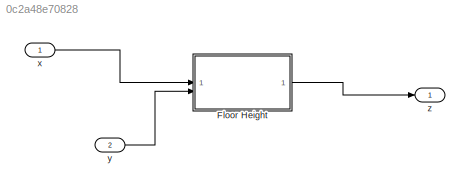
MODEL slx_0c2a48e70828
KIND model
CONFIG AbsTol = auto
CONFIG EnableMultiTasking = off
CONFIG FixedStep = auto
CONFIG MaxStep = auto
CONFIG MinStep = auto
CONFIG RelTol = 1e-3
CONFIG SampleTimeConstraint = Unconstrained
CONFIG SolverName = VariableStepAuto
CONFIG StartTime = 0.0
CONFIG StopTime = 10.0
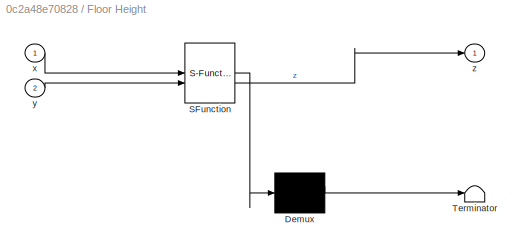
BLOCK [SubSystem] Floor Height
  ErrorFcn = Stateflow.Translate.translate
  PermitHierarchicalResolution = ExplicitOnly
  SFBlockType = MATLAB Function
  TreatAsAtomicUnit = on
BLOCK [Demux] Floor Height/ Demux 
  Outputs = 1
BLOCK [S-Function] Floor Height/ SFunction 
  EnableBusSupport = off
  FunctionName = sf_sfun
  PortCounts = [2 2]
  SFcnIsStateOwnerBlock = off
  SFunctionDeploymentMode = off
  Tag = Stateflow S-Function 2
BLOCK [Terminator] Floor Height/ Terminator 
BLOCK [Inport] Floor Height/x
BLOCK [Inport] Floor Height/y
  Port = 2
BLOCK [Outport] Floor Height/z
BLOCK [Inport] x
BLOCK [Inport] y
  Port = 2
BLOCK [Outport] z
LINE Floor Height:1 -> z:1
LINE x:1 -> Floor Height:1
LINE y:1 -> Floor Height:2
CHART Floor Height states=1 transitions=1
  STATE_LABEL 'eML_blk_kernel()'
  STATE_LABEL 'SCRIPT:\n\n    function z = floorHeightFcn(x, y)\n%#codegen\n% FLOORHEIGHTFCN  Return floor height [m] at position (x,y).\n% Suitable for MATLAB Function blocks (no dynamic sizing / cat / zeros).\n\n%% ---- CONSTANTS --------------------------------------------------------\ntile_pitch          = 0.3048;  % 1 ft in m\ngrout_width         = 0.010;   % 1 cm in m \ngrout_depth         = 0.005;   % 5 mm in m\ntil...<+1709ch>'
CHART  states=0 transitions=0
